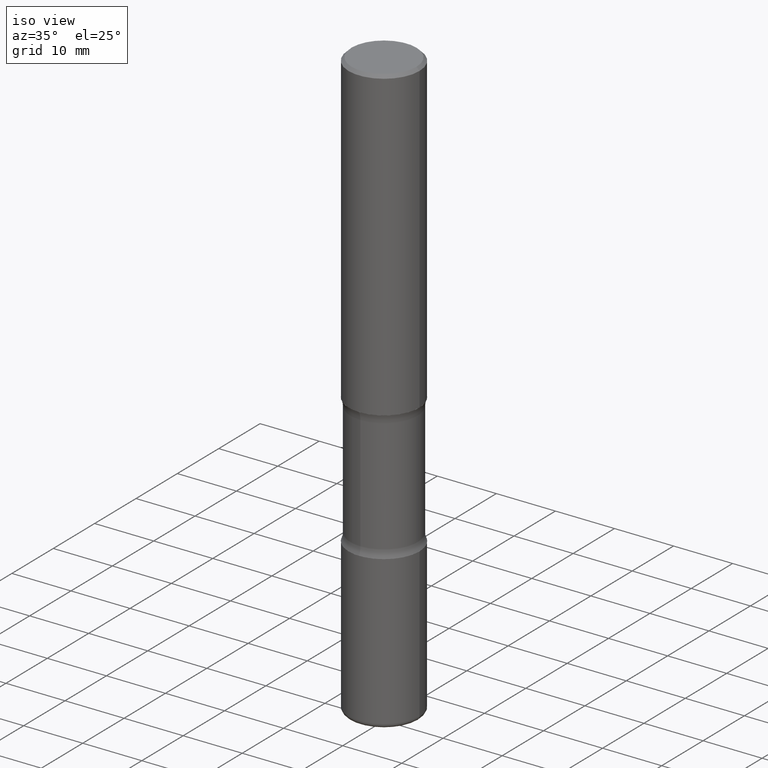
[diagram: clean part render]
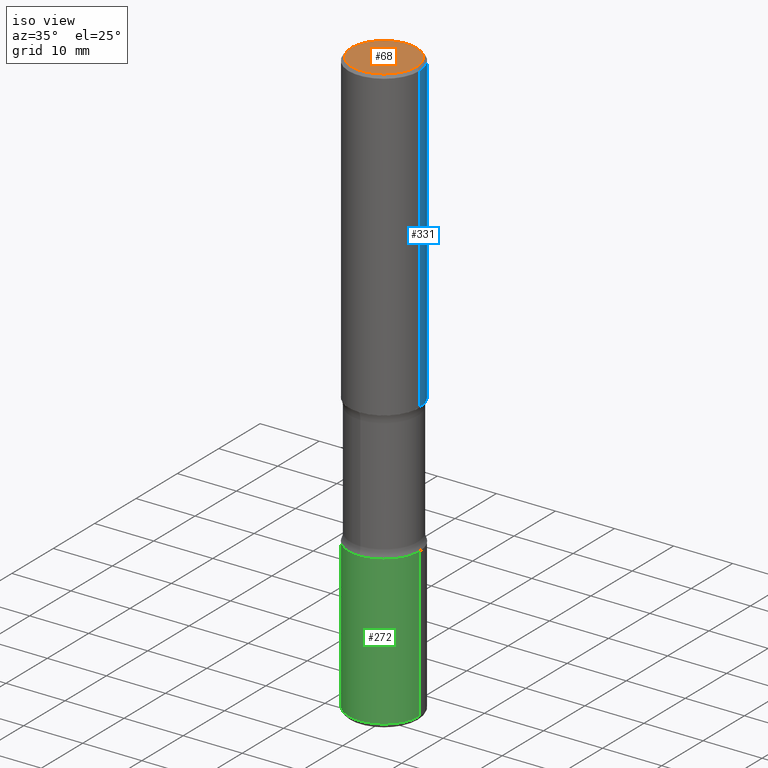
[diagram: same view with three faces highlighted in distinct colors, each labeled with its STEP entity id]
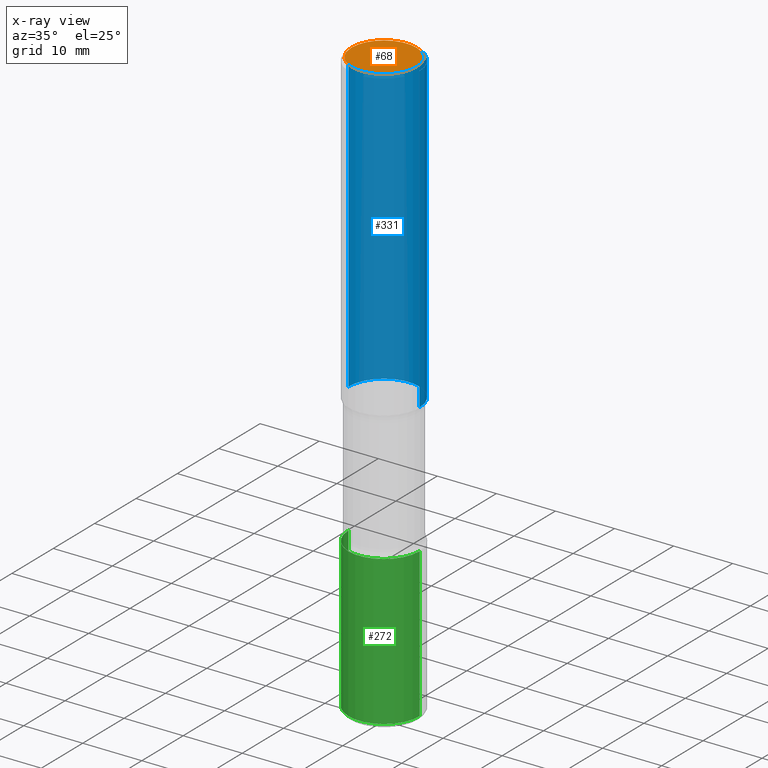
[diagram: x-ray of the same camera — body ghosted, the three highlighted faces saturated]
A machine part, iso view with three faces highlighted in distinct colors.
The next image is the same camera in x-ray (body ghosted, the three faces saturated) — at least one of them is partly hidden behind the body in this view.
Their STEP definitions:

[orange] entity #68 — the highlighted planar face has unit normal (0, -0, -1).
#1 = CARTESIAN_POINT ( 'NONE',  ( 0.2161999999999998368, -1.586759460484351002E-15, 4.268512490111238857E-18 ) ) ;
#12 = AXIS2_PLACEMENT_3D ( 'NONE', #297, #470, #425 ) ;
#19 = DIRECTION ( 'NONE',  ( -2.445468806185136597E-29, 3.491481338843145583E-15, 1.000000000000000000 ) ) ;
#21 = PLANE ( 'NONE',  #399 ) ;
#68 = ADVANCED_FACE ( 'NONE', ( #451 ), #21, .F. ) ;
#194 = CARTESIAN_POINT ( 'NONE',  ( 1.509716530915769534E-15, 0.2161999999999998368, -7.527240092128373149E-16 ) ) ;
#223 = ORIENTED_EDGE ( 'NONE', *, *, #280, .T. ) ;
#280 = EDGE_CURVE ( 'NONE', #305, #398, #409, .T. ) ;
#281 = DIRECTION ( 'NONE',  ( -1.000000000000000000, 6.982962677686265922E-15, -4.876176775795935793E-29 ) ) ;
#297 = CARTESIAN_POINT ( 'NONE',  ( -1.043851414335219820E-46, 1.490343170380447200E-32, 4.268512490100411279E-18 ) ) ;
#305 = VERTEX_POINT ( 'NONE', #1 ) ;
#313 = DIRECTION ( 'NONE',  ( 1.000000000000000000, -6.982962677686266711E-15, 4.876217060660159599E-29 ) ) ;
#358 = CARTESIAN_POINT ( 'NONE',  ( -0.2161999999999998368, 1.544631344304201183E-15, 4.268512490089730842E-18 ) ) ;
#374 = CIRCLE ( 'NONE', #555, 0.2161999999999998368 ) ;
#389 = CARTESIAN_POINT ( 'NONE',  ( -1.043851414335219820E-46, 1.490343170380447200E-32, 4.268512490100411279E-18 ) ) ;
#398 = VERTEX_POINT ( 'NONE', #358 ) ;
#399 = AXIS2_PLACEMENT_3D ( 'NONE', #194, #448, #281 ) ;
#407 = EDGE_CURVE ( 'NONE', #398, #305, #374, .T. ) ;
#409 = CIRCLE ( 'NONE', #12, 0.2161999999999998368 ) ;
#425 = DIRECTION ( 'NONE',  ( 1.000000000000000000, -6.982962677686266711E-15, 4.876217060660159599E-29 ) ) ;
#435 = ORIENTED_EDGE ( 'NONE', *, *, #407, .T. ) ;
#448 = DIRECTION ( 'NONE',  ( 2.438088387897960049E-29, -3.491481338843145188E-15, -1.000000000000000000 ) ) ;
#451 = FACE_OUTER_BOUND ( 'NONE', #482, .T. ) ;
#470 = DIRECTION ( 'NONE',  ( -2.445468806185136597E-29, 3.491481338843145583E-15, 1.000000000000000000 ) ) ;
#482 = EDGE_LOOP ( 'NONE', ( #435, #223 ) ) ;
#555 = AXIS2_PLACEMENT_3D ( 'NONE', #389, #19, #313 ) ;

[blue] entity #331 — the highlighted cylindrical surface (partial cylindrical patch) has radius 5.9995 mm, axis along (-0, 0, 1).
#15 = EDGE_CURVE ( 'NONE', #477, #130, #245, .T. ) ;
#45 = CARTESIAN_POINT ( 'NONE',  ( -0.2361999999999999933, 1.678301941865356591E-15, -1.161852468318208757E-29 ) ) ;
#75 = EDGE_CURVE ( 'NONE', #99, #122, #274, .T. ) ;
#96 = DIRECTION ( 'NONE',  ( -2.445468806185136597E-29, 3.491481338843145583E-15, 1.000000000000000000 ) ) ;
#99 = VERTEX_POINT ( 'NONE', #364 ) ;
#109 = DIRECTION ( 'NONE',  ( 1.000000000000000000, -6.982962677686267499E-15, 0.000000000000000000 ) ) ;
#120 = VECTOR ( 'NONE', #261, 39.37007874015748143 ) ;
#122 = VERTEX_POINT ( 'NONE', #498 ) ;
#130 = VERTEX_POINT ( 'NONE', #411 ) ;
#142 = DIRECTION ( 'NONE',  ( 1.000000000000000000, -6.982962677686266711E-15, 4.876176775795936353E-29 ) ) ;
#158 = ORIENTED_EDGE ( 'NONE', *, *, #432, .F. ) ;
#172 = AXIS2_PLACEMENT_3D ( 'NONE', #543, #369, #109 ) ;
#178 = CARTESIAN_POINT ( 'NONE',  ( 5.006363740022212241E-29, -7.147760596879688202E-15, -2.047200000000000131 ) ) ;
#186 = EDGE_CURVE ( 'NONE', #130, #122, #516, .T. ) ;
#187 = DIRECTION ( 'NONE',  ( -2.445468806185136597E-29, 3.491481338843145583E-15, 1.000000000000000000 ) ) ;
#199 = FACE_OUTER_BOUND ( 'NONE', #433, .T. ) ;
#217 = CARTESIAN_POINT ( 'NONE',  ( 0.2362000000000001321, -8.797136381349186305E-15, -2.047200000000000131 ) ) ;
#218 = ORIENTED_EDGE ( 'NONE', *, *, #15, .T. ) ;
#227 = AXIS2_PLACEMENT_3D ( 'NONE', #497, #187, #142 ) ;
#245 = CIRCLE ( 'NONE', #371, 0.2362000000000001321 ) ;
#261 = DIRECTION ( 'NONE',  ( -2.445468806185136877E-29, 3.491481338843145188E-15, 1.000000000000000000 ) ) ;
#269 = DIRECTION ( 'NONE',  ( 1.000000000000000000, -6.982962677686269077E-15, 0.000000000000000000 ) ) ;
#274 = CIRCLE ( 'NONE', #172, 0.2361999999999998823 ) ;
#322 = CYLINDRICAL_SURFACE ( 'NONE', #227, 0.2361999999999999933 ) ;
#331 = ADVANCED_FACE ( 'NONE', ( #199 ), #322, .T. ) ;
#340 = ORIENTED_EDGE ( 'NONE', *, *, #186, .T. ) ;
#364 = CARTESIAN_POINT ( 'NONE',  ( 0.2361999999999998823, -1.690279253850498179E-15, -0.02000000000000006981 ) ) ;
#369 = DIRECTION ( 'NONE',  ( -2.445468806185136597E-29, 3.491481338843145583E-15, 1.000000000000000000 ) ) ;
#371 = AXIS2_PLACEMENT_3D ( 'NONE', #178, #96, #269 ) ;
#378 = DIRECTION ( 'NONE',  ( -2.445468806185136877E-29, 3.491481338843145188E-15, 1.000000000000000000 ) ) ;
#411 = CARTESIAN_POINT ( 'NONE',  ( -0.2362000000000001598, -1.930493169962915017E-15, -2.047200000000000131 ) ) ;
#432 = EDGE_CURVE ( 'NONE', #477, #99, #490, .T. ) ;
#433 = EDGE_LOOP ( 'NONE', ( #218, #340, #535, #158 ) ) ;
#452 = CARTESIAN_POINT ( 'NONE',  ( 0.2361999999999999933, -1.649375784469496131E-15, 1.151752954443000088E-29 ) ) ;
#477 = VERTEX_POINT ( 'NONE', #217 ) ;
#490 = LINE ( 'NONE', #452, #120 ) ;
#497 = CARTESIAN_POINT ( 'NONE',  ( 0.000000000000000000, 0.000000000000000000, 0.000000000000000000 ) ) ;
#498 = CARTESIAN_POINT ( 'NONE',  ( -0.2361999999999998823, 1.579546157692632438E-15, -0.02000000000000006981 ) ) ;
#512 = VECTOR ( 'NONE', #378, 39.37007874015748143 ) ;
#516 = LINE ( 'NONE', #45, #512 ) ;
#535 = ORIENTED_EDGE ( 'NONE', *, *, #75, .F. ) ;
#543 = CARTESIAN_POINT ( 'NONE',  ( 4.890937612370289799E-31, -6.982962677686315028E-17, -0.02000000000000006981 ) ) ;

[green] entity #272 — the highlighted cylindrical surface (partial cylindrical patch) has radius 5.9995 mm, axis along (-0, 0, 1).
#2 = ORIENTED_EDGE ( 'NONE', *, *, #230, .F. ) ;
#6 = VERTEX_POINT ( 'NONE', #487 ) ;
#59 = ORIENTED_EDGE ( 'NONE', *, *, #205, .F. ) ;
#71 = CARTESIAN_POINT ( 'NONE',  ( -0.2362000000000000766, -1.196291564899481365E-14, -3.907000000000000028 ) ) ;
#81 = CARTESIAN_POINT ( 'NONE',  ( 0.2362000000000002153, -1.649375784469497708E-15, 1.151752954443001069E-29 ) ) ;
#84 = CARTESIAN_POINT ( 'NONE',  ( 0.000000000000000000, 0.000000000000000000, 0.000000000000000000 ) ) ;
#87 = DIRECTION ( 'NONE',  ( -2.445468806185136877E-29, 3.491481338843145188E-15, 1.000000000000000000 ) ) ;
#91 = EDGE_CURVE ( 'NONE', #137, #141, #445, .T. ) ;
#92 = VERTEX_POINT ( 'NONE', #233 ) ;
#93 = AXIS2_PLACEMENT_3D ( 'NONE', #84, #292, #254 ) ;
#110 = VECTOR ( 'NONE', #332, 39.37007874015748143 ) ;
#113 = DIRECTION ( 'NONE',  ( -2.445468806185136597E-29, 3.491481338843145583E-15, 1.000000000000000000 ) ) ;
#116 = DIRECTION ( 'NONE',  ( 1.000000000000000000, -6.982962677686265922E-15, 0.000000000000000000 ) ) ;
#137 = VERTEX_POINT ( 'NONE', #71 ) ;
#141 = VERTEX_POINT ( 'NONE', #155 ) ;
#155 = CARTESIAN_POINT ( 'NONE',  ( 0.2362000000000000766, -1.529059337532966657E-14, -3.907000000000000028 ) ) ;
#157 = CARTESIAN_POINT ( 'NONE',  ( -0.2362000000000002153, 1.678301941865358169E-15, -1.161852468318209878E-29 ) ) ;
#168 = DIRECTION ( 'NONE',  ( 1.000000000000000000, -6.982962677686269077E-15, 0.000000000000000000 ) ) ;
#205 = EDGE_CURVE ( 'NONE', #92, #6, #235, .T. ) ;
#230 = EDGE_CURVE ( 'NONE', #137, #92, #252, .T. ) ;
#233 = CARTESIAN_POINT ( 'NONE',  ( -0.2362000000000001321, -1.022834771985753829E-14, -2.913400000000000212 ) ) ;
#235 = CIRCLE ( 'NONE', #547, 0.2362000000000001321 ) ;
#252 = LINE ( 'NONE', #157, #110 ) ;
#254 = DIRECTION ( 'NONE',  ( 1.000000000000000000, -6.982962677686266711E-15, 4.876176775795935793E-29 ) ) ;
#272 = ADVANCED_FACE ( 'NONE', ( #345 ), #423, .T. ) ;
#291 = EDGE_CURVE ( 'NONE', #141, #6, #301, .T. ) ;
#292 = DIRECTION ( 'NONE',  ( -2.445468806185136597E-29, 3.491481338843145583E-15, 1.000000000000000000 ) ) ;
#301 = LINE ( 'NONE', #81, #485 ) ;
#307 = EDGE_LOOP ( 'NONE', ( #2, #528, #346, #59 ) ) ;
#332 = DIRECTION ( 'NONE',  ( -2.445468806185136877E-29, 3.491481338843145188E-15, 1.000000000000000000 ) ) ;
#345 = FACE_OUTER_BOUND ( 'NONE', #307, .T. ) ;
#346 = ORIENTED_EDGE ( 'NONE', *, *, #291, .T. ) ;
#375 = DIRECTION ( 'NONE',  ( -2.445468806185136597E-29, 3.491481338843145583E-15, 1.000000000000000000 ) ) ;
#423 = CYLINDRICAL_SURFACE ( 'NONE', #93, 0.2362000000000002153 ) ;
#445 = CIRCLE ( 'NONE', #475, 0.2362000000000002431 ) ;
#475 = AXIS2_PLACEMENT_3D ( 'NONE', #505, #113, #116 ) ;
#485 = VECTOR ( 'NONE', #87, 39.37007874015748143 ) ;
#487 = CARTESIAN_POINT ( 'NONE',  ( 0.2362000000000001321, -1.182145751705511899E-14, -2.913400000000000212 ) ) ;
#505 = CARTESIAN_POINT ( 'NONE',  ( 9.554446625765329033E-29, -1.364121759086017004E-14, -3.907000000000000028 ) ) ;
#528 = ORIENTED_EDGE ( 'NONE', *, *, #91, .T. ) ;
#547 = AXIS2_PLACEMENT_3D ( 'NONE', #552, #375, #168 ) ;
#552 = CARTESIAN_POINT ( 'NONE',  ( 7.124628819939777829E-29, -1.017208173258562247E-14, -2.913400000000000212 ) ) ;